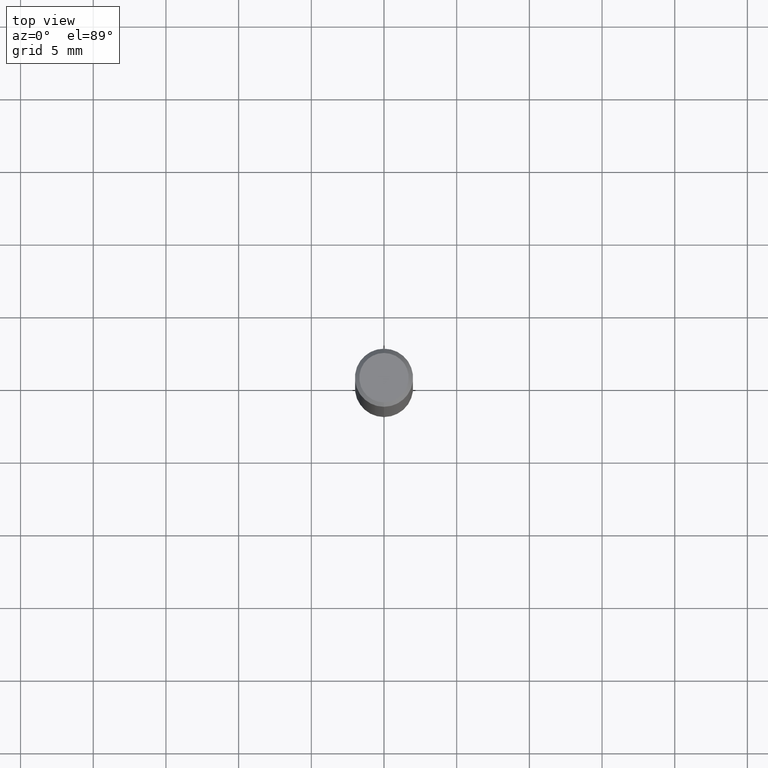
[diagram: clean part render]
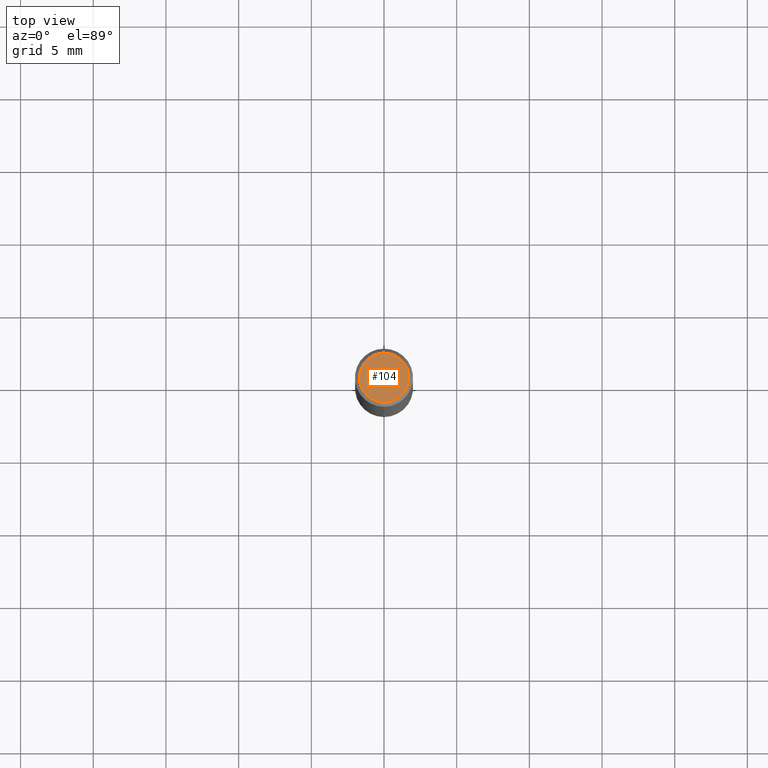
[diagram: same view with one face highlighted and labeled with its STEP entity id]
A machine part, top view. The second image highlights one B-rep face of the part: STEP entity #104.
In plain terms, the highlighted planar face has unit normal (-0, 0, 1).
Its self-contained STEP definition (entity closure, byte-faithful):
#104=ADVANCED_FACE('',(#259),#260,.T.);
#106=VERTEX_POINT('',#262);
#114=VERTEX_POINT('',#271);
#154=EDGE_CURVE('',#106,#114,#319,.T.);
#174=EDGE_CURVE('',#114,#106,#341,.T.);
#259=FACE_OUTER_BOUND('',#422,.T.);
#260=PLANE('',#423);
#262=CARTESIAN_POINT('',(0.0,1.7,0.0));
#271=CARTESIAN_POINT('',(2.08183080149804E-016,-1.7,0.0));
#319=CIRCLE('',#493,1.7);
#341=CIRCLE('',#520,1.7);
#422=EDGE_LOOP('',(#623,#624));
#423=AXIS2_PLACEMENT_3D('',#625,#626,#627);
#493=AXIS2_PLACEMENT_3D('',#709,#710,#711);
#520=AXIS2_PLACEMENT_3D('',#733,#734,#735);
#623=ORIENTED_EDGE('',*,*,#154,.F.);
#624=ORIENTED_EDGE('',*,*,#174,.F.);
#625=CARTESIAN_POINT('',(0.0,0.85,0.0));
#626=DIRECTION('',(-0.0,0.0,1.0));
#627=DIRECTION('',(0.0,-1.0,0.0));
#709=CARTESIAN_POINT('',(0.0,0.0,0.0));
#710=DIRECTION('',(0.0,0.0,-1.0));
#711=DIRECTION('',(0.0,1.0,0.0));
#733=CARTESIAN_POINT('',(0.0,0.0,0.0));
#734=DIRECTION('',(0.0,0.0,-1.0));
#735=DIRECTION('',(0.0,1.0,0.0));